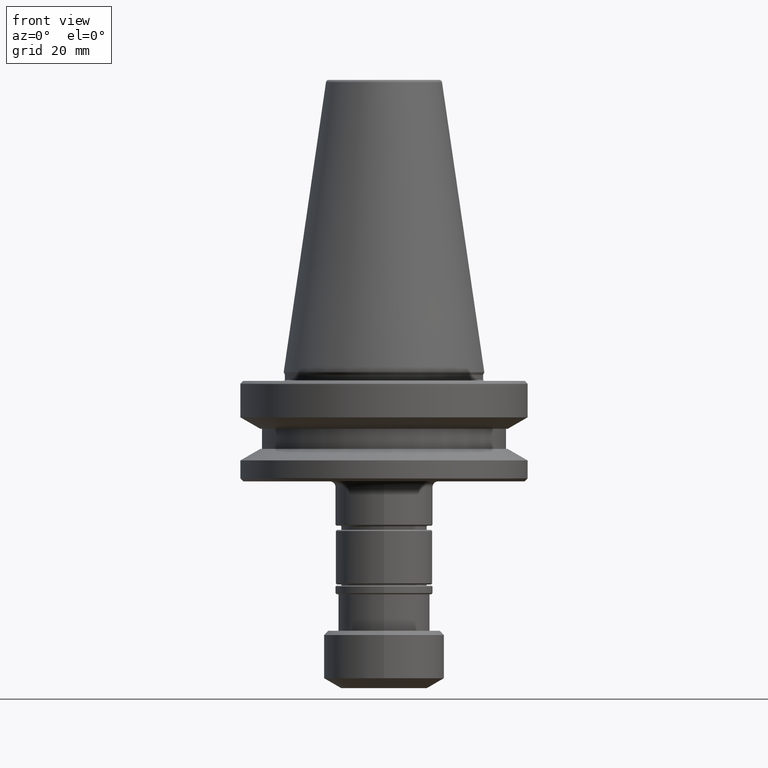
[diagram: clean part render]
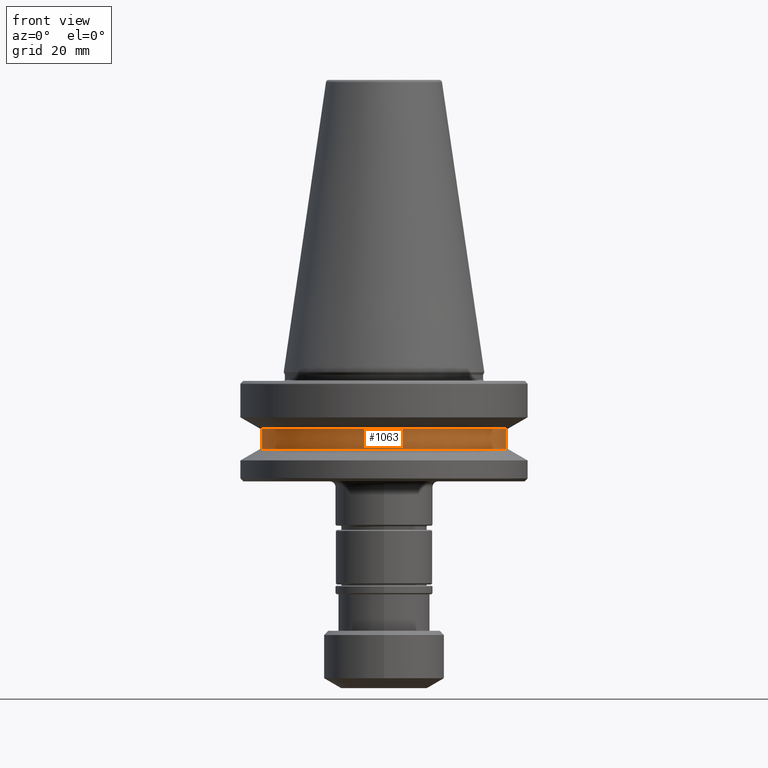
[diagram: same view with one face highlighted and labeled with its STEP entity id]
A machine part, front view. The second image highlights one B-rep face of the part: STEP entity #1063.
In plain terms, the highlighted cylindrical surface (partial cylindrical patch) has radius 42.5 mm, axis along (-0, -0, 1).
Its self-contained STEP definition (entity closure, byte-faithful):
#157 = CARTESIAN_POINT ( 'NONE',  ( -42.50000000000000000, 5.204748896376250900E-015, 69.75694866325665100 ) ) ;
#195 = EDGE_CURVE ( 'NONE', #1023, #1450, #1395, .T. ) ;
#205 = DIRECTION ( 'NONE',  ( -0.0000000000000000000, -0.0000000000000000000, 1.000000000000000000 ) ) ;
#212 = VERTEX_POINT ( 'NONE', #659 ) ;
#263 = EDGE_CURVE ( 'NONE', #1450, #212, #1344, .T. ) ;
#323 = DIRECTION ( 'NONE',  ( -0.0000000000000000000, -0.0000000000000000000, 1.000000000000000000 ) ) ;
#348 = AXIS2_PLACEMENT_3D ( 'NONE', #1663, #802, #1311 ) ;
#416 = CARTESIAN_POINT ( 'NONE',  ( 0.0000000000000000000, 0.0000000000000000000, -19.69999999999999600 ) ) ;
#420 = VERTEX_POINT ( 'NONE', #1230 ) ;
#424 = DIRECTION ( 'NONE',  ( -0.0000000000000000000, -0.0000000000000000000, 1.000000000000000000 ) ) ;
#474 = LINE ( 'NONE', #157, #531 ) ;
#531 = VECTOR ( 'NONE', #323, 1000.000000000000000 ) ;
#645 = FACE_OUTER_BOUND ( 'NONE', #895, .T. ) ;
#659 = CARTESIAN_POINT ( 'NONE',  ( 42.50000000000000000, 0.0000000000000000000, -19.69999999999999600 ) ) ;
#667 = CYLINDRICAL_SURFACE ( 'NONE', #1365, 42.50000000000000000 ) ;
#687 = ORIENTED_EDGE ( 'NONE', *, *, #263, .T. ) ;
#696 = CARTESIAN_POINT ( 'NONE',  ( -42.50000000000000000, 5.204748896376250900E-015, -26.70000000000000300 ) ) ;
#703 = DIRECTION ( 'NONE',  ( 1.000000000000000000, 0.0000000000000000000, 0.0000000000000000000 ) ) ;
#722 = EDGE_CURVE ( 'NONE', #420, #212, #898, .T. ) ;
#802 = DIRECTION ( 'NONE',  ( -0.0000000000000000000, -0.0000000000000000000, 1.000000000000000000 ) ) ;
#895 = EDGE_LOOP ( 'NONE', ( #1662, #1857, #687, #1866 ) ) ;
#898 = CIRCLE ( 'NONE', #919, 42.50000000000000000 ) ;
#919 = AXIS2_PLACEMENT_3D ( 'NONE', #416, #424, #1498 ) ;
#1023 = VERTEX_POINT ( 'NONE', #696 ) ;
#1063 = ADVANCED_FACE ( 'NONE', ( #645 ), #667, .T. ) ;
#1207 = CARTESIAN_POINT ( 'NONE',  ( 42.50000000000000000, 0.0000000000000000000, -26.70000000000000300 ) ) ;
#1230 = CARTESIAN_POINT ( 'NONE',  ( -42.50000000000000000, 5.204748896376250900E-015, -19.69999999999999600 ) ) ;
#1311 = DIRECTION ( 'NONE',  ( 1.000000000000000000, 0.0000000000000000000, 0.0000000000000000000 ) ) ;
#1343 = VECTOR ( 'NONE', #1526, 1000.000000000000000 ) ;
#1344 = LINE ( 'NONE', #1558, #1343 ) ;
#1365 = AXIS2_PLACEMENT_3D ( 'NONE', #1426, #205, #703 ) ;
#1395 = CIRCLE ( 'NONE', #348, 42.50000000000000000 ) ;
#1426 = CARTESIAN_POINT ( 'NONE',  ( 0.0000000000000000000, 0.0000000000000000000, 69.75694866325665100 ) ) ;
#1450 = VERTEX_POINT ( 'NONE', #1207 ) ;
#1498 = DIRECTION ( 'NONE',  ( 1.000000000000000000, 0.0000000000000000000, 0.0000000000000000000 ) ) ;
#1526 = DIRECTION ( 'NONE',  ( -0.0000000000000000000, -0.0000000000000000000, 1.000000000000000000 ) ) ;
#1558 = CARTESIAN_POINT ( 'NONE',  ( 42.50000000000000000, 0.0000000000000000000, 69.75694866325665100 ) ) ;
#1662 = ORIENTED_EDGE ( 'NONE', *, *, #2001, .F. ) ;
#1663 = CARTESIAN_POINT ( 'NONE',  ( 0.0000000000000000000, 0.0000000000000000000, -26.70000000000000300 ) ) ;
#1857 = ORIENTED_EDGE ( 'NONE', *, *, #195, .T. ) ;
#1866 = ORIENTED_EDGE ( 'NONE', *, *, #722, .F. ) ;
#2001 = EDGE_CURVE ( 'NONE', #1023, #420, #474, .T. ) ;